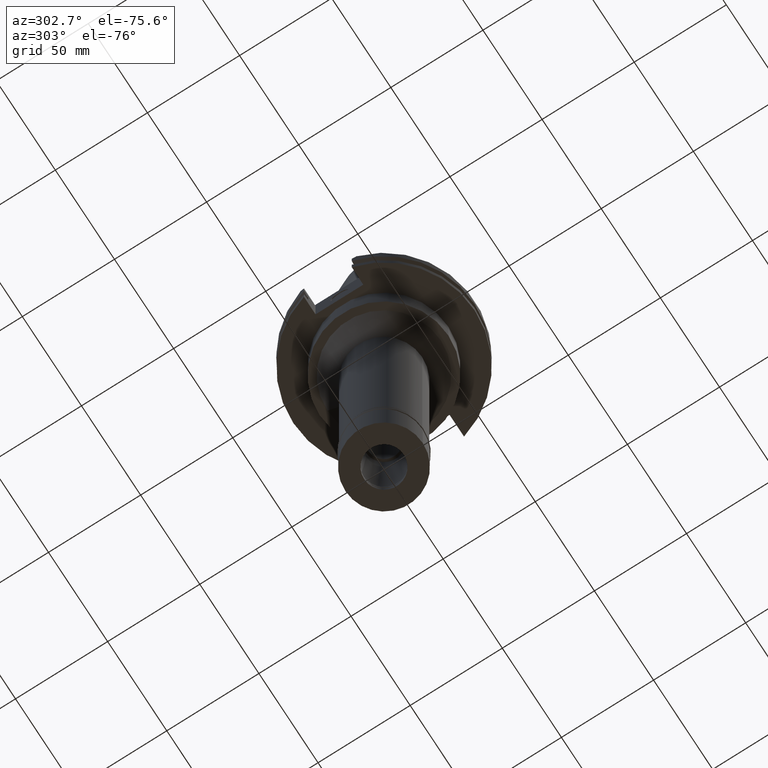
[diagram: clean part render]
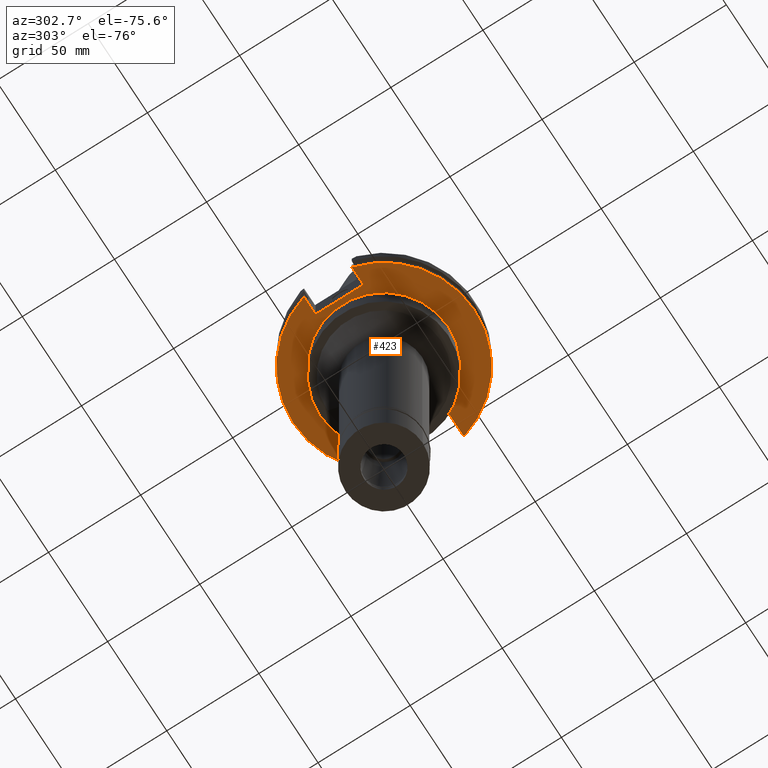
[diagram: same view with one face highlighted and labeled with its STEP entity id]
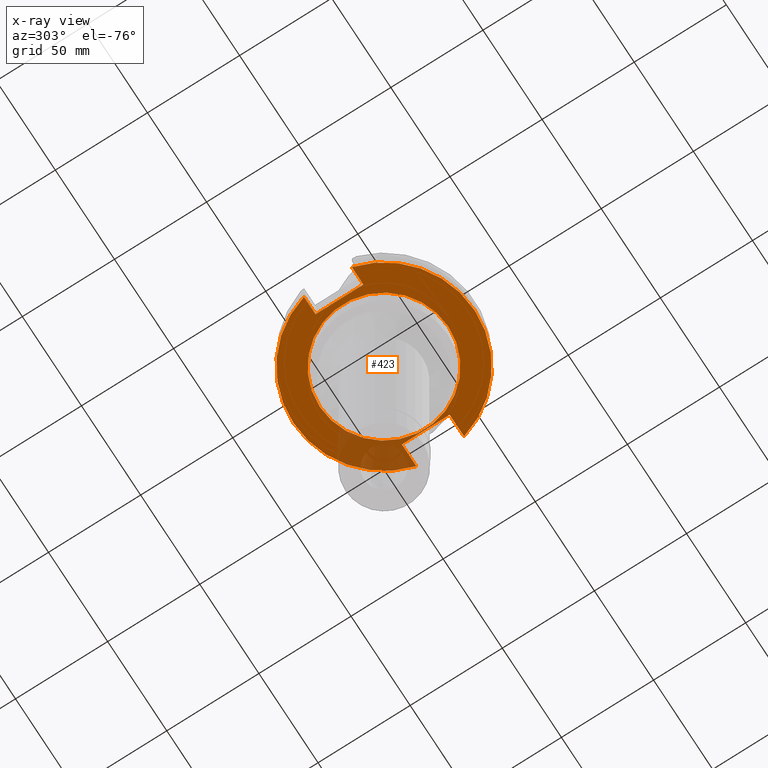
[diagram: x-ray of the same camera — body ghosted, the highlighted face saturated]
A machine part, auxiliary view. The second image highlights one B-rep face of the part: STEP entity #423.
The next image is the same camera in x-ray: the body ghosted, the highlighted face saturated — about 15% of this face is hidden behind the body in this view.
In plain terms, the highlighted planar face has unit normal (0, 0, -1).
Its self-contained STEP definition (entity closure, byte-faithful):
#77 = VECTOR ( 'NONE', #1621, 1000.000000000000000 ) ;
#166 = CARTESIAN_POINT ( 'NONE',  ( 0.0000000000000000000, 0.0000000000000000000, -19.05000000000000071 ) ) ;
#255 = DIRECTION ( 'NONE',  ( 0.0000000000000000000, 1.000000000000000000, 0.0000000000000000000 ) ) ;
#313 = CIRCLE ( 'NONE', #1440, 49.21249999999999858 ) ;
#341 = LINE ( 'NONE', #1916, #1548 ) ;
#369 = AXIS2_PLACEMENT_3D ( 'NONE', #2572, #1825, #1546 ) ;
#391 = VERTEX_POINT ( 'NONE', #1406 ) ;
#410 = LINE ( 'NONE', #3000, #1883 ) ;
#421 = ORIENTED_EDGE ( 'NONE', *, *, #2627, .F. ) ;
#423 = ADVANCED_FACE ( 'NONE', ( #928, #1913 ), #1156, .T. ) ;
#495 = CARTESIAN_POINT ( 'NONE',  ( 0.0000000000000000000, 2.648788561875999721E-14, -19.05000000000000071 ) ) ;
#572 = AXIS2_PLACEMENT_3D ( 'NONE', #1923, #3172, #1332 ) ;
#598 = CARTESIAN_POINT ( 'NONE',  ( -47.47671146204000081, -12.95500000000000007, -19.05000000000000071 ) ) ;
#672 = EDGE_CURVE ( 'NONE', #3116, #1478, #884, .T. ) ;
#675 = CARTESIAN_POINT ( 'NONE',  ( 0.0000000000000000000, 2.648788561875999721E-14, -19.05000000000000071 ) ) ;
#694 = CARTESIAN_POINT ( 'NONE',  ( 35.27000000000000313, -12.95500000000000007, -19.05000000000000071 ) ) ;
#734 = DIRECTION ( 'NONE',  ( -1.000000000000000000, 1.813217472294999948E-14, 0.0000000000000000000 ) ) ;
#774 = EDGE_CURVE ( 'NONE', #2241, #1113, #2022, .T. ) ;
#884 = LINE ( 'NONE', #2934, #77 ) ;
#928 = FACE_OUTER_BOUND ( 'NONE', #1372, .T. ) ;
#1043 = EDGE_LOOP ( 'NONE', ( #1787, #2582 ) ) ;
#1046 = DIRECTION ( 'NONE',  ( 0.0000000000000000000, 0.0000000000000000000, 1.000000000000000000 ) ) ;
#1062 = EDGE_CURVE ( 'NONE', #2714, #3321, #1503, .T. ) ;
#1086 = CARTESIAN_POINT ( 'NONE',  ( -37.67999999999999972, -12.95500000000000007, -19.05000000000000071 ) ) ;
#1113 = VERTEX_POINT ( 'NONE', #1749 ) ;
#1138 = VERTEX_POINT ( 'NONE', #598 ) ;
#1153 = VECTOR ( 'NONE', #2370, 1000.000000000000000 ) ;
#1156 = PLANE ( 'NONE',  #2562 ) ;
#1160 = EDGE_CURVE ( 'NONE', #2745, #1138, #1866, .T. ) ;
#1190 = DIRECTION ( 'NONE',  ( 0.0000000000000000000, 1.000000000000000000, 0.0000000000000000000 ) ) ;
#1229 = CARTESIAN_POINT ( 'NONE',  ( 47.47671146204000081, -12.95500000000000007, -19.05000000000000071 ) ) ;
#1304 = CARTESIAN_POINT ( 'NONE',  ( 0.0000000000000000000, -34.92499999999999716, -19.05000000000000071 ) ) ;
#1332 = DIRECTION ( 'NONE',  ( 0.0000000000000000000, -1.000000000000000000, 0.0000000000000000000 ) ) ;
#1372 = EDGE_LOOP ( 'NONE', ( #2663, #421, #1733, #2498, #1739, #2327, #1491, #2382 ) ) ;
#1406 = CARTESIAN_POINT ( 'NONE',  ( 35.27000000000000313, 12.95500000000000007, -19.05000000000000071 ) ) ;
#1440 = AXIS2_PLACEMENT_3D ( 'NONE', #495, #1046, #255 ) ;
#1478 = VERTEX_POINT ( 'NONE', #1229 ) ;
#1491 = ORIENTED_EDGE ( 'NONE', *, *, #1160, .F. ) ;
#1503 = LINE ( 'NONE', #1813, #2462 ) ;
#1546 = DIRECTION ( 'NONE',  ( 0.0000000000000000000, -1.000000000000000000, 0.0000000000000000000 ) ) ;
#1548 = VECTOR ( 'NONE', #2942, 1000.000000000000000 ) ;
#1558 = VERTEX_POINT ( 'NONE', #2586 ) ;
#1575 = CARTESIAN_POINT ( 'NONE',  ( -37.67999999999999972, -12.95500000000000007, -19.05000000000000071 ) ) ;
#1621 = DIRECTION ( 'NONE',  ( 1.000000000000000000, -1.411572756165000194E-14, 0.0000000000000000000 ) ) ;
#1728 = EDGE_CURVE ( 'NONE', #2745, #2714, #2892, .T. ) ;
#1733 = ORIENTED_EDGE ( 'NONE', *, *, #2412, .F. ) ;
#1739 = ORIENTED_EDGE ( 'NONE', *, *, #672, .T. ) ;
#1749 = CARTESIAN_POINT ( 'NONE',  ( 0.0000000000000000000, 34.92499999999999716, -19.05000000000000071 ) ) ;
#1787 = ORIENTED_EDGE ( 'NONE', *, *, #1963, .F. ) ;
#1788 = CARTESIAN_POINT ( 'NONE',  ( -47.47671146204000081, 12.95500000000000007, -19.05000000000000071 ) ) ;
#1813 = CARTESIAN_POINT ( 'NONE',  ( -37.67999999999999972, 12.95500000000000007, -19.05000000000000071 ) ) ;
#1825 = DIRECTION ( 'NONE',  ( 0.0000000000000000000, 0.0000000000000000000, 1.000000000000000000 ) ) ;
#1839 = CARTESIAN_POINT ( 'NONE',  ( -37.67999999999999972, -12.95500000000000007, -19.05000000000000071 ) ) ;
#1866 = LINE ( 'NONE', #1086, #1153 ) ;
#1883 = VECTOR ( 'NONE', #2474, 1000.000000000000000 ) ;
#1913 = FACE_BOUND ( 'NONE', #1043, .T. ) ;
#1916 = CARTESIAN_POINT ( 'NONE',  ( 35.27000000000000313, 12.95500000000000007, -19.05000000000000071 ) ) ;
#1923 = CARTESIAN_POINT ( 'NONE',  ( 0.0000000000000000000, 2.648788561875999721E-14, -19.05000000000000071 ) ) ;
#1929 = VECTOR ( 'NONE', #2385, 1000.000000000000000 ) ;
#1934 = CIRCLE ( 'NONE', #2692, 34.92499999999999716 ) ;
#1963 = EDGE_CURVE ( 'NONE', #1113, #2241, #1934, .T. ) ;
#2011 = DIRECTION ( 'NONE',  ( 0.0000000000000000000, 0.0000000000000000000, -1.000000000000000000 ) ) ;
#2022 = CIRCLE ( 'NONE', #572, 34.92499999999999716 ) ;
#2241 = VERTEX_POINT ( 'NONE', #1304 ) ;
#2327 = ORIENTED_EDGE ( 'NONE', *, *, #2667, .F. ) ;
#2370 = DIRECTION ( 'NONE',  ( -1.000000000000000000, -1.795085297572000011E-14, 0.0000000000000000000 ) ) ;
#2382 = ORIENTED_EDGE ( 'NONE', *, *, #1728, .T. ) ;
#2385 = DIRECTION ( 'NONE',  ( 0.0000000000000000000, 1.000000000000000000, 0.0000000000000000000 ) ) ;
#2412 = EDGE_CURVE ( 'NONE', #391, #1558, #410, .T. ) ;
#2462 = VECTOR ( 'NONE', #734, 1000.000000000000000 ) ;
#2474 = DIRECTION ( 'NONE',  ( 1.000000000000000000, 1.455229645530999953E-14, 0.0000000000000000000 ) ) ;
#2498 = ORIENTED_EDGE ( 'NONE', *, *, #2886, .T. ) ;
#2562 = AXIS2_PLACEMENT_3D ( 'NONE', #166, #2011, #3041 ) ;
#2572 = CARTESIAN_POINT ( 'NONE',  ( 0.0000000000000000000, 2.648788561875999721E-14, -19.05000000000000071 ) ) ;
#2582 = ORIENTED_EDGE ( 'NONE', *, *, #774, .F. ) ;
#2586 = CARTESIAN_POINT ( 'NONE',  ( 47.47671146204000081, 12.95500000000000007, -19.05000000000000071 ) ) ;
#2627 = EDGE_CURVE ( 'NONE', #1558, #3321, #313, .T. ) ;
#2663 = ORIENTED_EDGE ( 'NONE', *, *, #1062, .T. ) ;
#2667 = EDGE_CURVE ( 'NONE', #1138, #1478, #2788, .T. ) ;
#2692 = AXIS2_PLACEMENT_3D ( 'NONE', #675, #3260, #1190 ) ;
#2714 = VERTEX_POINT ( 'NONE', #3106 ) ;
#2745 = VERTEX_POINT ( 'NONE', #1575 ) ;
#2788 = CIRCLE ( 'NONE', #369, 49.21249999999999858 ) ;
#2886 = EDGE_CURVE ( 'NONE', #391, #3116, #341, .T. ) ;
#2892 = LINE ( 'NONE', #1839, #1929 ) ;
#2934 = CARTESIAN_POINT ( 'NONE',  ( 35.27000000000000313, -12.95500000000000007, -19.05000000000000071 ) ) ;
#2942 = DIRECTION ( 'NONE',  ( 0.0000000000000000000, -1.000000000000000000, 0.0000000000000000000 ) ) ;
#3000 = CARTESIAN_POINT ( 'NONE',  ( 35.27000000000000313, 12.95500000000000007, -19.05000000000000071 ) ) ;
#3041 = DIRECTION ( 'NONE',  ( 0.0000000000000000000, -1.000000000000000000, 0.0000000000000000000 ) ) ;
#3106 = CARTESIAN_POINT ( 'NONE',  ( -37.67999999999999972, 12.95500000000000007, -19.05000000000000071 ) ) ;
#3116 = VERTEX_POINT ( 'NONE', #694 ) ;
#3172 = DIRECTION ( 'NONE',  ( 0.0000000000000000000, 0.0000000000000000000, -1.000000000000000000 ) ) ;
#3260 = DIRECTION ( 'NONE',  ( 0.0000000000000000000, 0.0000000000000000000, -1.000000000000000000 ) ) ;
#3321 = VERTEX_POINT ( 'NONE', #1788 ) ;